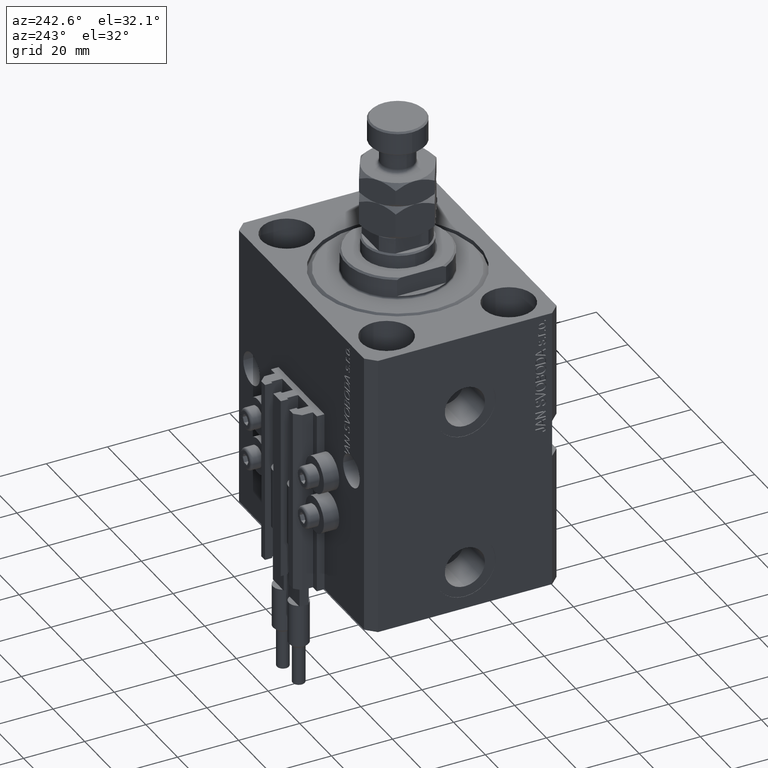
[diagram: clean part render]
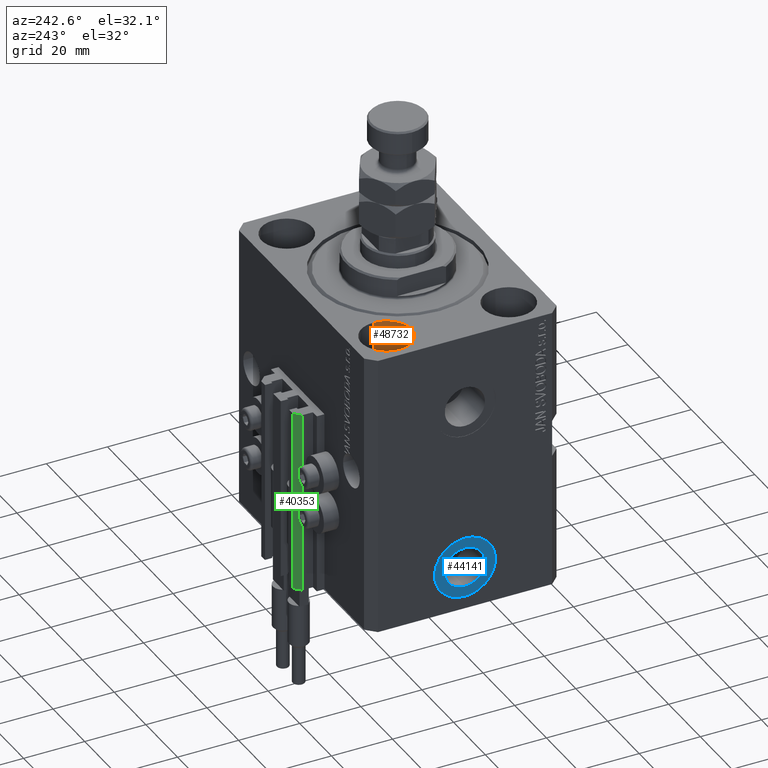
[diagram: same view with three faces highlighted in distinct colors, each labeled with its STEP entity id]
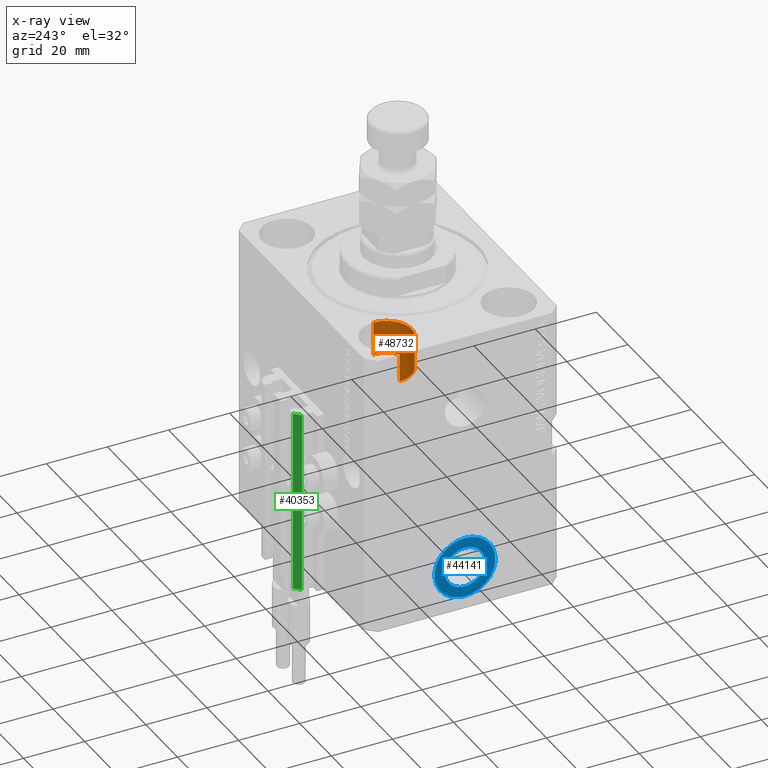
[diagram: x-ray of the same camera — body ghosted, the three highlighted faces saturated]
A machine part, auxiliary view with three faces highlighted in distinct colors.
The next image is the same camera in x-ray (body ghosted, the three faces saturated) — at least one of them is partly hidden behind the body in this view.
Their STEP definitions:

[orange] entity #48732 — the highlighted cylindrical surface (edge-blend (fillet) strip) has radius 8.25 mm, axis along (0, 0, 1).
#1429 = VERTEX_POINT ( 'NONE', #40886 ) ;
#3604 = CARTESIAN_POINT ( 'NONE',  ( -23.25000000000000000, 20.00000000000000000, -11.00000000000000000 ) ) ;
#4848 = VERTEX_POINT ( 'NONE', #30309 ) ;
#6727 = EDGE_CURVE ( 'NONE', #4848, #46582, #18757, .T. ) ;
#11525 = CYLINDRICAL_SURFACE ( 'NONE', #12792, 8.250000000000000000 ) ;
#12792 = AXIS2_PLACEMENT_3D ( 'NONE', #15066, #15564, #42418 ) ;
#13121 = CARTESIAN_POINT ( 'NONE',  ( -23.25000000000000000, 20.00000000000000000, -11.00000000000000000 ) ) ;
#13553 = VECTOR ( 'NONE', #41031, 1000.000000000000000 ) ;
#13684 = CARTESIAN_POINT ( 'NONE',  ( -39.75000000000000000, 20.00000000000000000, -11.00000000000000000 ) ) ;
#14866 = EDGE_CURVE ( 'NONE', #46582, #46014, #19032, .T. ) ;
#14920 = DIRECTION ( 'NONE',  ( 0.000000000000000000, 0.000000000000000000, 1.000000000000000000 ) ) ;
#15066 = CARTESIAN_POINT ( 'NONE',  ( -31.50000000000000000, 20.00000000000000000, -11.00000000000000000 ) ) ;
#15564 = DIRECTION ( 'NONE',  ( -0.000000000000000000, -0.000000000000000000, 1.000000000000000000 ) ) ;
#15661 = CIRCLE ( 'NONE', #43978, 8.250000000000000000 ) ;
#17143 = AXIS2_PLACEMENT_3D ( 'NONE', #22013, #14920, #29863 ) ;
#17157 = ORIENTED_EDGE ( 'NONE', *, *, #14866, .F. ) ;
#17193 = CARTESIAN_POINT ( 'NONE',  ( -31.50000000000000000, 20.00000000000000000, 0.000000000000000000 ) ) ;
#17227 = LINE ( 'NONE', #13684, #13553 ) ;
#18757 = CIRCLE ( 'NONE', #17143, 8.250000000000000000 ) ;
#19032 = LINE ( 'NONE', #3604, #42608 ) ;
#19385 = CARTESIAN_POINT ( 'NONE',  ( -23.25000000000000000, 20.00000000000000000, 0.000000000000000000 ) ) ;
#20684 = EDGE_CURVE ( 'NONE', #4848, #1429, #17227, .T. ) ;
#22013 = CARTESIAN_POINT ( 'NONE',  ( -31.50000000000000000, 20.00000000000000000, -11.00000000000000000 ) ) ;
#26970 = FACE_OUTER_BOUND ( 'NONE', #29676, .T. ) ;
#29676 = EDGE_LOOP ( 'NONE', ( #43444, #30714, #38798, #17157 ) ) ;
#29863 = DIRECTION ( 'NONE',  ( 1.000000000000000000, 0.000000000000000000, 0.000000000000000000 ) ) ;
#30309 = CARTESIAN_POINT ( 'NONE',  ( -39.75000000000000000, 20.00000000000000000, -11.00000000000000000 ) ) ;
#30714 = ORIENTED_EDGE ( 'NONE', *, *, #20684, .T. ) ;
#31910 = DIRECTION ( 'NONE',  ( 0.000000000000000000, 0.000000000000000000, 1.000000000000000000 ) ) ;
#38798 = ORIENTED_EDGE ( 'NONE', *, *, #40574, .T. ) ;
#40574 = EDGE_CURVE ( 'NONE', #1429, #46014, #15661, .T. ) ;
#40886 = CARTESIAN_POINT ( 'NONE',  ( -39.75000000000000000, 20.00000000000000000, 0.000000000000000000 ) ) ;
#41031 = DIRECTION ( 'NONE',  ( -0.000000000000000000, -0.000000000000000000, 1.000000000000000000 ) ) ;
#42418 = DIRECTION ( 'NONE',  ( 1.000000000000000000, 0.000000000000000000, 0.000000000000000000 ) ) ;
#42608 = VECTOR ( 'NONE', #49667, 1000.000000000000000 ) ;
#43444 = ORIENTED_EDGE ( 'NONE', *, *, #6727, .F. ) ;
#43978 = AXIS2_PLACEMENT_3D ( 'NONE', #17193, #31910, #47076 ) ;
#46014 = VERTEX_POINT ( 'NONE', #19385 ) ;
#46582 = VERTEX_POINT ( 'NONE', #13121 ) ;
#47076 = DIRECTION ( 'NONE',  ( 1.000000000000000000, 0.000000000000000000, 0.000000000000000000 ) ) ;
#48732 = ADVANCED_FACE ( 'NONE', ( #26970 ), #11525, .F. ) ;
#49667 = DIRECTION ( 'NONE',  ( -0.000000000000000000, -0.000000000000000000, 1.000000000000000000 ) ) ;

[blue] entity #44141 — the highlighted planar face has unit normal (-1, 0, 0).
#940 = ORIENTED_EDGE ( 'NONE', *, *, #28377, .F. ) ;
#2275 = EDGE_LOOP ( 'NONE', ( #940, #34258 ) ) ;
#2319 = CARTESIAN_POINT ( 'NONE',  ( -42.39999999999999858, -9.674709713264090904E-15, -79.00000000000000000 ) ) ;
#3907 = AXIS2_PLACEMENT_3D ( 'NONE', #49527, #19140, #45233 ) ;
#4396 = VERTEX_POINT ( 'NONE', #33159 ) ;
#4442 = AXIS2_PLACEMENT_3D ( 'NONE', #2319, #25860, #10665 ) ;
#4548 = ORIENTED_EDGE ( 'NONE', *, *, #21828, .T. ) ;
#4830 = CIRCLE ( 'NONE', #14512, 6.580000000000002736 ) ;
#8177 = DIRECTION ( 'NONE',  ( -1.000000000000000000, 0.000000000000000000, 0.000000000000000000 ) ) ;
#10665 = DIRECTION ( 'NONE',  ( 0.000000000000000000, 0.000000000000000000, 1.000000000000000000 ) ) ;
#11223 = CARTESIAN_POINT ( 'NONE',  ( -42.39999999999999858, -9.674709713264090904E-15, -79.00000000000000000 ) ) ;
#11944 = EDGE_LOOP ( 'NONE', ( #38519, #4548 ) ) ;
#14512 = AXIS2_PLACEMENT_3D ( 'NONE', #34632, #34374, #26282 ) ;
#17213 = AXIS2_PLACEMENT_3D ( 'NONE', #39807, #40053, #47632 ) ;
#17715 = CARTESIAN_POINT ( 'NONE',  ( -42.39999999999999858, -9.674709713264090904E-15, -69.00000000000000000 ) ) ;
#17792 = CARTESIAN_POINT ( 'NONE',  ( -42.39999999999999858, -9.674709713264090904E-15, -72.42000000000000171 ) ) ;
#19058 = DIRECTION ( 'NONE',  ( 0.000000000000000000, 0.000000000000000000, 1.000000000000000000 ) ) ;
#19140 = DIRECTION ( 'NONE',  ( -1.000000000000000000, 0.000000000000000000, 0.000000000000000000 ) ) ;
#19741 = VERTEX_POINT ( 'NONE', #17715 ) ;
#21828 = EDGE_CURVE ( 'NONE', #4396, #19741, #40272, .T. ) ;
#22612 = PLANE ( 'NONE',  #42572 ) ;
#22866 = FACE_BOUND ( 'NONE', #2275, .T. ) ;
#25860 = DIRECTION ( 'NONE',  ( -1.000000000000000000, 0.000000000000000000, 0.000000000000000000 ) ) ;
#26282 = DIRECTION ( 'NONE',  ( 0.000000000000000000, 0.000000000000000000, 1.000000000000000000 ) ) ;
#26628 = CARTESIAN_POINT ( 'NONE',  ( -42.39999999999999858, -8.868892119425131862E-15, -85.57999999999999829 ) ) ;
#28377 = EDGE_CURVE ( 'NONE', #39128, #43354, #4830, .T. ) ;
#32741 = CIRCLE ( 'NONE', #4442, 9.999999999999994671 ) ;
#33159 = CARTESIAN_POINT ( 'NONE',  ( -42.39999999999999858, -8.450062914116737844E-15, -89.00000000000000000 ) ) ;
#33401 = CIRCLE ( 'NONE', #17213, 6.580000000000002736 ) ;
#34258 = ORIENTED_EDGE ( 'NONE', *, *, #39379, .F. ) ;
#34374 = DIRECTION ( 'NONE',  ( -1.000000000000000000, 0.000000000000000000, 0.000000000000000000 ) ) ;
#34632 = CARTESIAN_POINT ( 'NONE',  ( -42.39999999999999858, -9.674709713264090904E-15, -79.00000000000000000 ) ) ;
#38519 = ORIENTED_EDGE ( 'NONE', *, *, #41418, .T. ) ;
#39128 = VERTEX_POINT ( 'NONE', #17792 ) ;
#39379 = EDGE_CURVE ( 'NONE', #43354, #39128, #33401, .T. ) ;
#39807 = CARTESIAN_POINT ( 'NONE',  ( -42.39999999999999858, -9.674709713264090904E-15, -79.00000000000000000 ) ) ;
#40053 = DIRECTION ( 'NONE',  ( -1.000000000000000000, 0.000000000000000000, 0.000000000000000000 ) ) ;
#40272 = CIRCLE ( 'NONE', #3907, 9.999999999999994671 ) ;
#41418 = EDGE_CURVE ( 'NONE', #19741, #4396, #32741, .T. ) ;
#42366 = FACE_OUTER_BOUND ( 'NONE', #11944, .T. ) ;
#42572 = AXIS2_PLACEMENT_3D ( 'NONE', #11223, #8177, #19058 ) ;
#43354 = VERTEX_POINT ( 'NONE', #26628 ) ;
#44141 = ADVANCED_FACE ( 'NONE', ( #22866, #42366 ), #22612, .T. ) ;
#45233 = DIRECTION ( 'NONE',  ( 0.000000000000000000, 0.000000000000000000, 1.000000000000000000 ) ) ;
#47632 = DIRECTION ( 'NONE',  ( 0.000000000000000000, 0.000000000000000000, 1.000000000000000000 ) ) ;
#49527 = CARTESIAN_POINT ( 'NONE',  ( -42.39999999999999858, -9.674709713264090904E-15, -79.00000000000000000 ) ) ;

[green] entity #40353 — the highlighted planar face has unit normal (-0.7071, 0.7071, 0).
#300 = CARTESIAN_POINT ( 'NONE',  ( -10.00000000000000000, 39.49999999999999289, -93.00000000000000000 ) ) ;
#533 = EDGE_CURVE ( 'NONE', #20818, #3686, #26108, .T. ) ;
#1318 = VERTEX_POINT ( 'NONE', #20383 ) ;
#2484 = EDGE_CURVE ( 'NONE', #1318, #20818, #43833, .T. ) ;
#2525 = ORIENTED_EDGE ( 'NONE', *, *, #533, .T. ) ;
#2820 = CARTESIAN_POINT ( 'NONE',  ( -12.00000000000000000, 37.49999999999999289, -93.00000000000000000 ) ) ;
#3686 = VERTEX_POINT ( 'NONE', #13630 ) ;
#6097 = EDGE_CURVE ( 'NONE', #1318, #40857, #15732, .T. ) ;
#7320 = VECTOR ( 'NONE', #20778, 999.9999999999998863 ) ;
#7874 = VECTOR ( 'NONE', #38974, 999.9999999999998863 ) ;
#12733 = EDGE_LOOP ( 'NONE', ( #15737, #44859, #29012, #2525 ) ) ;
#13630 = CARTESIAN_POINT ( 'NONE',  ( -12.00000000000000000, 37.49999999999999289, -33.00000000000000000 ) ) ;
#14419 = CARTESIAN_POINT ( 'NONE',  ( -12.00000000000000000, 37.49999999999999289, -93.00000000000000000 ) ) ;
#15732 = LINE ( 'NONE', #300, #21939 ) ;
#15737 = ORIENTED_EDGE ( 'NONE', *, *, #47307, .F. ) ;
#16223 = CARTESIAN_POINT ( 'NONE',  ( -10.00000000000000000, 39.49999999999999289, -93.00000000000000000 ) ) ;
#20027 = DIRECTION ( 'NONE',  ( 0.000000000000000000, 0.000000000000000000, 1.000000000000000000 ) ) ;
#20383 = CARTESIAN_POINT ( 'NONE',  ( -10.00000000000000000, 39.49999999999999289, -93.00000000000000000 ) ) ;
#20778 = DIRECTION ( 'NONE',  ( -0.7071067811865472397, -0.7071067811865479058, 0.000000000000000000 ) ) ;
#20818 = VERTEX_POINT ( 'NONE', #14419 ) ;
#21939 = VECTOR ( 'NONE', #20027, 1000.000000000000000 ) ;
#22047 = PLANE ( 'NONE',  #39937 ) ;
#23509 = VECTOR ( 'NONE', #41552, 1000.000000000000000 ) ;
#23521 = CARTESIAN_POINT ( 'NONE',  ( -10.00000000000000000, 39.49999999999999289, -33.00000000000000000 ) ) ;
#26108 = LINE ( 'NONE', #2820, #23509 ) ;
#29012 = ORIENTED_EDGE ( 'NONE', *, *, #2484, .T. ) ;
#29649 = DIRECTION ( 'NONE',  ( -0.7071067811865479058, 0.7071067811865472397, 0.000000000000000000 ) ) ;
#34910 = LINE ( 'NONE', #23521, #7874 ) ;
#36883 = CARTESIAN_POINT ( 'NONE',  ( -10.00000000000000000, 39.49999999999999289, -33.00000000000000000 ) ) ;
#37502 = FACE_OUTER_BOUND ( 'NONE', #12733, .T. ) ;
#38974 = DIRECTION ( 'NONE',  ( -0.7071067811865472397, -0.7071067811865479058, 0.000000000000000000 ) ) ;
#39937 = AXIS2_PLACEMENT_3D ( 'NONE', #44851, #29649, #41547 ) ;
#40353 = ADVANCED_FACE ( 'NONE', ( #37502 ), #22047, .T. ) ;
#40857 = VERTEX_POINT ( 'NONE', #36883 ) ;
#41547 = DIRECTION ( 'NONE',  ( -0.7071067811865472397, -0.7071067811865479058, 0.000000000000000000 ) ) ;
#41552 = DIRECTION ( 'NONE',  ( 0.000000000000000000, 0.000000000000000000, 1.000000000000000000 ) ) ;
#43833 = LINE ( 'NONE', #16223, #7320 ) ;
#44851 = CARTESIAN_POINT ( 'NONE',  ( -10.00000000000000000, 39.49999999999999289, -93.00000000000000000 ) ) ;
#44859 = ORIENTED_EDGE ( 'NONE', *, *, #6097, .F. ) ;
#47307 = EDGE_CURVE ( 'NONE', #40857, #3686, #34910, .T. ) ;